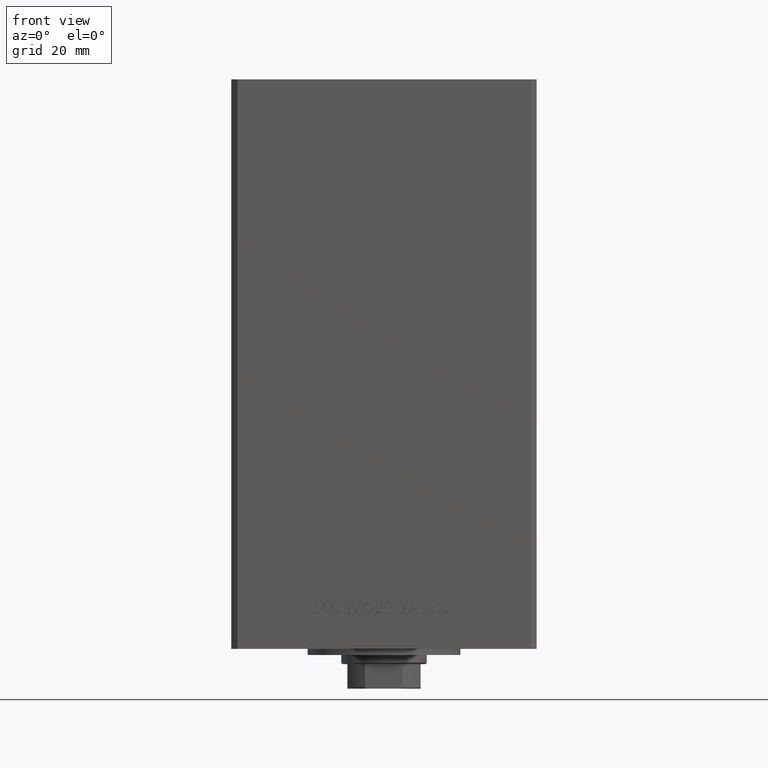
[diagram: clean part render]
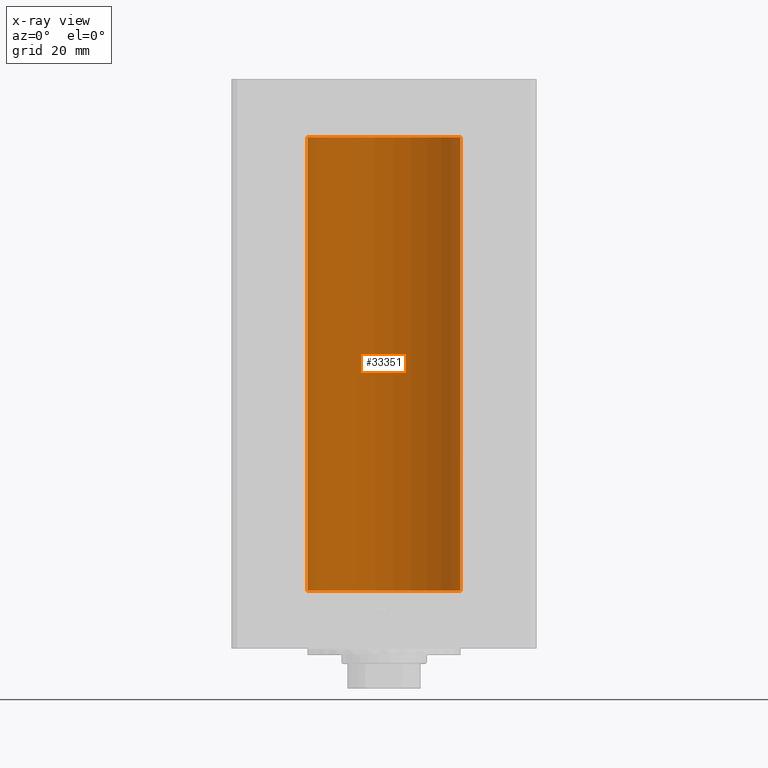
[diagram: x-ray — body ghosted, one internal face saturated and labeled with its STEP entity id]
A machine part, front view, then the same camera in x-ray: the body is ghosted and one INTERNAL B-rep face — a face not visible from any outside direction — is saturated and labeled: STEP entity #33351.
In plain terms, the highlighted cylindrical surface (partial cylindrical patch) has radius 25 mm, axis along (-0, -0, -1).
Its self-contained STEP definition (entity closure, byte-faithful):
#1520 = DIRECTION ( 'NONE',  ( -0.000000000000000000, 0.000000000000000000, 1.000000000000000000 ) ) ;
#2443 = ORIENTED_EDGE ( 'NONE', *, *, #17082, .F. ) ;
#6130 = EDGE_LOOP ( 'NONE', ( #2443, #18155, #43377, #9694 ) ) ;
#8287 = LINE ( 'NONE', #20595, #20764 ) ;
#9333 = CARTESIAN_POINT ( 'NONE',  ( 0.000000000000000000, 0.000000000000000000, 0.000000000000000000 ) ) ;
#9694 = ORIENTED_EDGE ( 'NONE', *, *, #36038, .F. ) ;
#9891 = AXIS2_PLACEMENT_3D ( 'NONE', #25258, #37507, #40550 ) ;
#11349 = VERTEX_POINT ( 'NONE', #31080 ) ;
#11524 = AXIS2_PLACEMENT_3D ( 'NONE', #35877, #1520, #32119 ) ;
#12442 = CARTESIAN_POINT ( 'NONE',  ( 25.00000000000000000, 3.061616997868383043E-15, 148.5000000000000000 ) ) ;
#12574 = AXIS2_PLACEMENT_3D ( 'NONE', #9333, #14114, #33181 ) ;
#14114 = DIRECTION ( 'NONE',  ( -0.000000000000000000, 0.000000000000000000, 1.000000000000000000 ) ) ;
#16944 = LINE ( 'NONE', #43036, #45572 ) ;
#17082 = EDGE_CURVE ( 'NONE', #18056, #46040, #16944, .T. ) ;
#18056 = VERTEX_POINT ( 'NONE', #12442 ) ;
#18155 = ORIENTED_EDGE ( 'NONE', *, *, #34746, .T. ) ;
#18443 = CYLINDRICAL_SURFACE ( 'NONE', #9891, 25.00000000000000000 ) ;
#18626 = EDGE_CURVE ( 'NONE', #11349, #32972, #8287, .T. ) ;
#20595 = CARTESIAN_POINT ( 'NONE',  ( -25.00000000000000000, 0.000000000000000000, 148.5000000000000000 ) ) ;
#20764 = VECTOR ( 'NONE', #35146, 1000.000000000000000 ) ;
#21161 = CIRCLE ( 'NONE', #11524, 25.00000000000000000 ) ;
#21403 = CIRCLE ( 'NONE', #12574, 25.00000000000000000 ) ;
#25258 = CARTESIAN_POINT ( 'NONE',  ( 0.000000000000000000, 0.000000000000000000, 148.5000000000000000 ) ) ;
#28043 = CARTESIAN_POINT ( 'NONE',  ( 25.00000000000000000, 3.061616997868383043E-15, 0.000000000000000000 ) ) ;
#28241 = DIRECTION ( 'NONE',  ( -0.000000000000000000, -0.000000000000000000, -1.000000000000000000 ) ) ;
#28322 = CARTESIAN_POINT ( 'NONE',  ( -25.00000000000000000, 0.000000000000000000, 0.000000000000000000 ) ) ;
#29258 = FACE_OUTER_BOUND ( 'NONE', #6130, .T. ) ;
#31080 = CARTESIAN_POINT ( 'NONE',  ( -25.00000000000000000, 0.000000000000000000, 148.5000000000000000 ) ) ;
#32119 = DIRECTION ( 'NONE',  ( 1.000000000000000000, 0.000000000000000000, 0.000000000000000000 ) ) ;
#32972 = VERTEX_POINT ( 'NONE', #28322 ) ;
#33181 = DIRECTION ( 'NONE',  ( 1.000000000000000000, 0.000000000000000000, 0.000000000000000000 ) ) ;
#33351 = ADVANCED_FACE ( 'NONE', ( #29258 ), #18443, .F. ) ;
#34746 = EDGE_CURVE ( 'NONE', #18056, #11349, #21161, .T. ) ;
#35146 = DIRECTION ( 'NONE',  ( -0.000000000000000000, -0.000000000000000000, -1.000000000000000000 ) ) ;
#35877 = CARTESIAN_POINT ( 'NONE',  ( 0.000000000000000000, 0.000000000000000000, 148.5000000000000000 ) ) ;
#36038 = EDGE_CURVE ( 'NONE', #46040, #32972, #21403, .T. ) ;
#37507 = DIRECTION ( 'NONE',  ( -0.000000000000000000, -0.000000000000000000, -1.000000000000000000 ) ) ;
#40550 = DIRECTION ( 'NONE',  ( -1.000000000000000000, 0.000000000000000000, 0.000000000000000000 ) ) ;
#43036 = CARTESIAN_POINT ( 'NONE',  ( 25.00000000000000000, 3.061616997868383043E-15, 148.5000000000000000 ) ) ;
#43377 = ORIENTED_EDGE ( 'NONE', *, *, #18626, .T. ) ;
#45572 = VECTOR ( 'NONE', #28241, 1000.000000000000000 ) ;
#46040 = VERTEX_POINT ( 'NONE', #28043 ) ;